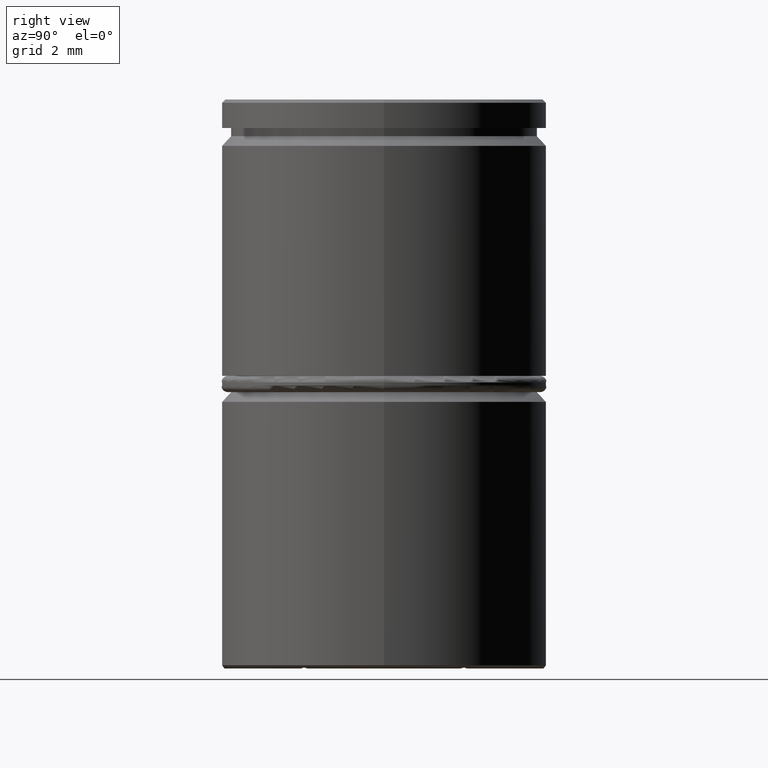
[diagram: clean part render]
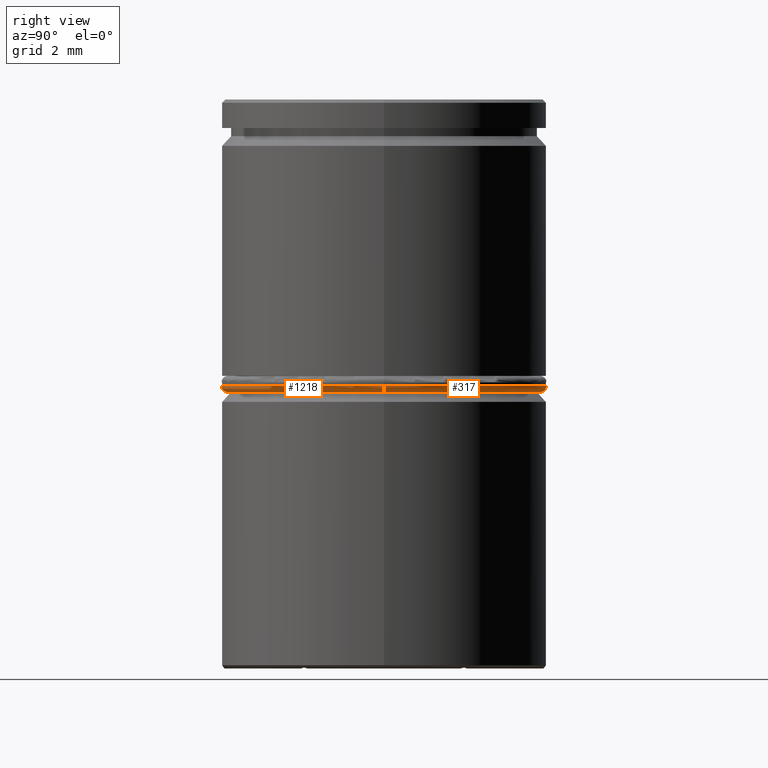
[diagram: same view with one multi-face feature highlighted, each face labeled with its STEP entity id]
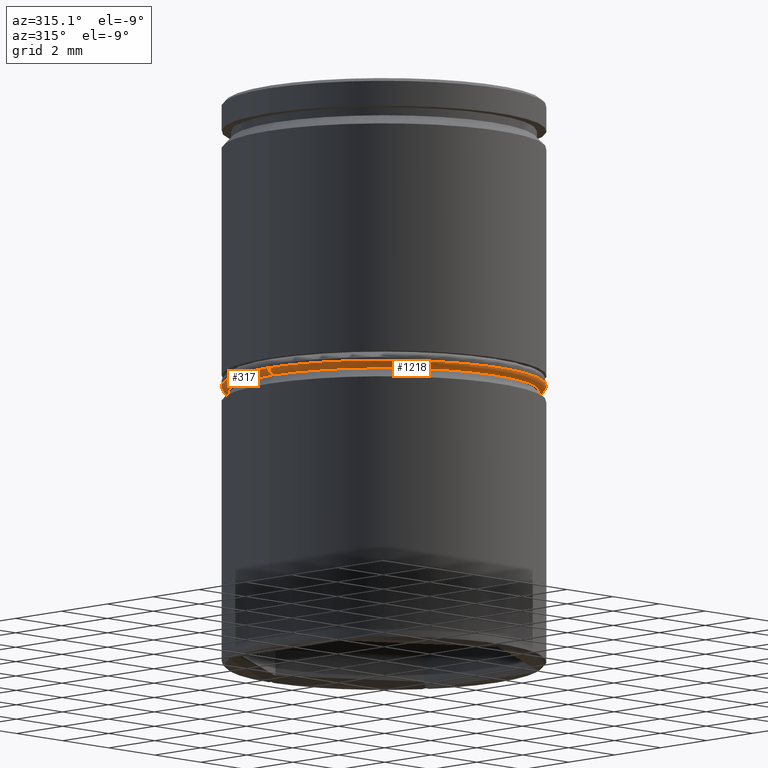
[diagram: same view with one multi-face feature highlighted, each face labeled with its STEP entity id]
A machine part, right view. The highlighted faces form ONE feature: a constant-radius fillet chain: 2 tangent blend faces with common blend radius 0.2 mm. The faces share edges in the B-rep.
A second angle (auxiliary view) of the same feature is appended — it is thin or edge-on in the first view.
Their STEP definitions:
[1] entity #1218 (Torus):
#10 = EDGE_CURVE ( 'NONE', #851, #344, #855, .T. ) ;
#18 = TOROIDAL_SURFACE ( 'NONE', #502, 4.800000000000000711, 0.2000000000000000111 ) ;
#69 = EDGE_CURVE ( 'NONE', #136, #344, #1354, .T. ) ;
#113 = CARTESIAN_POINT ( 'NONE',  ( -5.000000000000000000, 6.123233995736766282E-16, -8.800000000000000711 ) ) ;
#120 = DIRECTION ( 'NONE',  ( 0.000000000000000000, 0.000000000000000000, 1.000000000000000000 ) ) ;
#136 = VERTEX_POINT ( 'NONE', #113 ) ;
#149 = DIRECTION ( 'NONE',  ( 0.000000000000000000, -1.000000000000000000, 0.000000000000000000 ) ) ;
#157 = DIRECTION ( 'NONE',  ( -1.000000000000000000, 1.224646799147353454E-16, 0.000000000000000000 ) ) ;
#221 = CARTESIAN_POINT ( 'NONE',  ( 0.000000000000000000, 0.000000000000000000, -9.000000000000001776 ) ) ;
#268 = CARTESIAN_POINT ( 'NONE',  ( 4.800000000000000711, 0.000000000000000000, -9.000000000000001776 ) ) ;
#271 = CARTESIAN_POINT ( 'NONE',  ( 5.000000000000000000, 0.000000000000000000, -8.800000000000000711 ) ) ;
#289 = CARTESIAN_POINT ( 'NONE',  ( -4.800000000000000711, 5.878304635907295197E-16, -8.800000000000000711 ) ) ;
#344 = VERTEX_POINT ( 'NONE', #271 ) ;
#362 = DIRECTION ( 'NONE',  ( 1.224646799147353207E-16, 1.000000000000000000, -0.000000000000000000 ) ) ;
#453 = DIRECTION ( 'NONE',  ( 1.000000000000000000, 0.000000000000000000, 0.000000000000000000 ) ) ;
#502 = AXIS2_PLACEMENT_3D ( 'NONE', #744, #1159, #936 ) ;
#526 = ORIENTED_EDGE ( 'NONE', *, *, #1300, .F. ) ;
#541 = DIRECTION ( 'NONE',  ( -0.000000000000000000, -0.000000000000000000, -1.000000000000000000 ) ) ;
#546 = CARTESIAN_POINT ( 'NONE',  ( 0.000000000000000000, 0.000000000000000000, -8.800000000000000711 ) ) ;
#670 = ORIENTED_EDGE ( 'NONE', *, *, #69, .F. ) ;
#744 = CARTESIAN_POINT ( 'NONE',  ( 0.000000000000000000, 0.000000000000000000, -8.800000000000000711 ) ) ;
#830 = FACE_OUTER_BOUND ( 'NONE', #1342, .T. ) ;
#851 = VERTEX_POINT ( 'NONE', #268 ) ;
#855 = CIRCLE ( 'NONE', #975, 0.2000000000000005107 ) ;
#879 = AXIS2_PLACEMENT_3D ( 'NONE', #546, #120, #1283 ) ;
#884 = ORIENTED_EDGE ( 'NONE', *, *, #1088, .F. ) ;
#885 = CIRCLE ( 'NONE', #1280, 4.800000000000000711 ) ;
#936 = DIRECTION ( 'NONE',  ( 1.000000000000000000, 0.000000000000000000, 0.000000000000000000 ) ) ;
#975 = AXIS2_PLACEMENT_3D ( 'NONE', #1206, #149, #1013 ) ;
#984 = CIRCLE ( 'NONE', #1067, 0.1999999999999996503 ) ;
#1013 = DIRECTION ( 'NONE',  ( 0.000000000000000000, 0.000000000000000000, -1.000000000000000000 ) ) ;
#1025 = CARTESIAN_POINT ( 'NONE',  ( -4.800000000000000711, 6.000769315822031726E-16, -9.000000000000001776 ) ) ;
#1067 = AXIS2_PLACEMENT_3D ( 'NONE', #289, #362, #157 ) ;
#1088 = EDGE_CURVE ( 'NONE', #1133, #136, #984, .T. ) ;
#1133 = VERTEX_POINT ( 'NONE', #1025 ) ;
#1159 = DIRECTION ( 'NONE',  ( 0.000000000000000000, 0.000000000000000000, 1.000000000000000000 ) ) ;
#1206 = CARTESIAN_POINT ( 'NONE',  ( 4.800000000000000711, 0.000000000000000000, -8.800000000000000711 ) ) ;
#1218 = ADVANCED_FACE ( 'NONE', ( #830 ), #18, .T. ) ;
#1244 = ORIENTED_EDGE ( 'NONE', *, *, #10, .T. ) ;
#1280 = AXIS2_PLACEMENT_3D ( 'NONE', #221, #541, #453 ) ;
#1283 = DIRECTION ( 'NONE',  ( 1.000000000000000000, 0.000000000000000000, 0.000000000000000000 ) ) ;
#1300 = EDGE_CURVE ( 'NONE', #851, #1133, #885, .T. ) ;
#1342 = EDGE_LOOP ( 'NONE', ( #884, #526, #1244, #670 ) ) ;
#1354 = CIRCLE ( 'NONE', #879, 5.000000000000000000 ) ;
[2] entity #317 (Torus):
#10 = EDGE_CURVE ( 'NONE', #851, #344, #855, .T. ) ;
#57 = AXIS2_PLACEMENT_3D ( 'NONE', #1202, #587, #1022 ) ;
#59 = ORIENTED_EDGE ( 'NONE', *, *, #555, .F. ) ;
#113 = CARTESIAN_POINT ( 'NONE',  ( -5.000000000000000000, 6.123233995736766282E-16, -8.800000000000000711 ) ) ;
#136 = VERTEX_POINT ( 'NONE', #113 ) ;
#149 = DIRECTION ( 'NONE',  ( 0.000000000000000000, -1.000000000000000000, 0.000000000000000000 ) ) ;
#157 = DIRECTION ( 'NONE',  ( -1.000000000000000000, 1.224646799147353454E-16, 0.000000000000000000 ) ) ;
#228 = CARTESIAN_POINT ( 'NONE',  ( 0.000000000000000000, 0.000000000000000000, -9.000000000000001776 ) ) ;
#268 = CARTESIAN_POINT ( 'NONE',  ( 4.800000000000000711, 0.000000000000000000, -9.000000000000001776 ) ) ;
#271 = CARTESIAN_POINT ( 'NONE',  ( 5.000000000000000000, 0.000000000000000000, -8.800000000000000711 ) ) ;
#289 = CARTESIAN_POINT ( 'NONE',  ( -4.800000000000000711, 5.878304635907295197E-16, -8.800000000000000711 ) ) ;
#295 = ORIENTED_EDGE ( 'NONE', *, *, #10, .F. ) ;
#317 = ADVANCED_FACE ( 'NONE', ( #1228 ), #519, .T. ) ;
#344 = VERTEX_POINT ( 'NONE', #271 ) ;
#362 = DIRECTION ( 'NONE',  ( 1.224646799147353207E-16, 1.000000000000000000, -0.000000000000000000 ) ) ;
#439 = DIRECTION ( 'NONE',  ( -0.000000000000000000, -0.000000000000000000, -1.000000000000000000 ) ) ;
#446 = DIRECTION ( 'NONE',  ( 1.000000000000000000, 0.000000000000000000, 0.000000000000000000 ) ) ;
#450 = AXIS2_PLACEMENT_3D ( 'NONE', #575, #1009, #1348 ) ;
#519 = TOROIDAL_SURFACE ( 'NONE', #57, 4.800000000000000711, 0.2000000000000000111 ) ;
#555 = EDGE_CURVE ( 'NONE', #344, #136, #1134, .T. ) ;
#575 = CARTESIAN_POINT ( 'NONE',  ( 0.000000000000000000, 0.000000000000000000, -8.800000000000000711 ) ) ;
#587 = DIRECTION ( 'NONE',  ( 0.000000000000000000, 0.000000000000000000, 1.000000000000000000 ) ) ;
#851 = VERTEX_POINT ( 'NONE', #268 ) ;
#855 = CIRCLE ( 'NONE', #975, 0.2000000000000005107 ) ;
#938 = EDGE_CURVE ( 'NONE', #1133, #851, #1051, .T. ) ;
#955 = AXIS2_PLACEMENT_3D ( 'NONE', #228, #439, #446 ) ;
#974 = ORIENTED_EDGE ( 'NONE', *, *, #1088, .T. ) ;
#975 = AXIS2_PLACEMENT_3D ( 'NONE', #1206, #149, #1013 ) ;
#984 = CIRCLE ( 'NONE', #1067, 0.1999999999999996503 ) ;
#1009 = DIRECTION ( 'NONE',  ( 0.000000000000000000, 0.000000000000000000, 1.000000000000000000 ) ) ;
#1013 = DIRECTION ( 'NONE',  ( 0.000000000000000000, 0.000000000000000000, -1.000000000000000000 ) ) ;
#1022 = DIRECTION ( 'NONE',  ( 1.000000000000000000, 0.000000000000000000, 0.000000000000000000 ) ) ;
#1025 = CARTESIAN_POINT ( 'NONE',  ( -4.800000000000000711, 6.000769315822031726E-16, -9.000000000000001776 ) ) ;
#1030 = ORIENTED_EDGE ( 'NONE', *, *, #938, .F. ) ;
#1051 = CIRCLE ( 'NONE', #955, 4.800000000000000711 ) ;
#1067 = AXIS2_PLACEMENT_3D ( 'NONE', #289, #362, #157 ) ;
#1088 = EDGE_CURVE ( 'NONE', #1133, #136, #984, .T. ) ;
#1133 = VERTEX_POINT ( 'NONE', #1025 ) ;
#1134 = CIRCLE ( 'NONE', #450, 5.000000000000000000 ) ;
#1202 = CARTESIAN_POINT ( 'NONE',  ( 0.000000000000000000, 0.000000000000000000, -8.800000000000000711 ) ) ;
#1206 = CARTESIAN_POINT ( 'NONE',  ( 4.800000000000000711, 0.000000000000000000, -8.800000000000000711 ) ) ;
#1228 = FACE_OUTER_BOUND ( 'NONE', #1262, .T. ) ;
#1262 = EDGE_LOOP ( 'NONE', ( #1030, #974, #59, #295 ) ) ;
#1348 = DIRECTION ( 'NONE',  ( 1.000000000000000000, 0.000000000000000000, 0.000000000000000000 ) ) ;